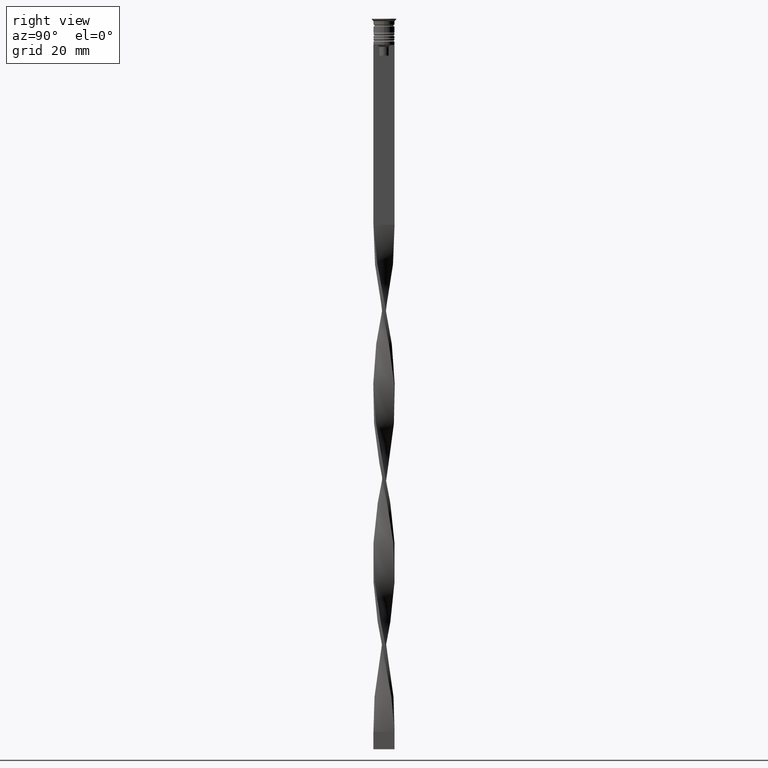
[diagram: clean part render]
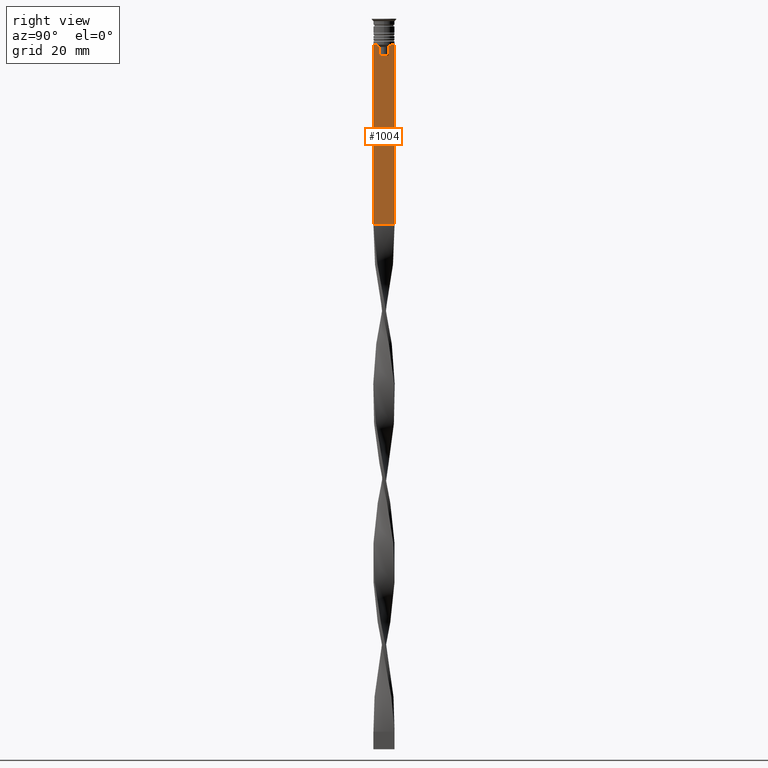
[diagram: same view with one face highlighted and labeled with its STEP entity id]
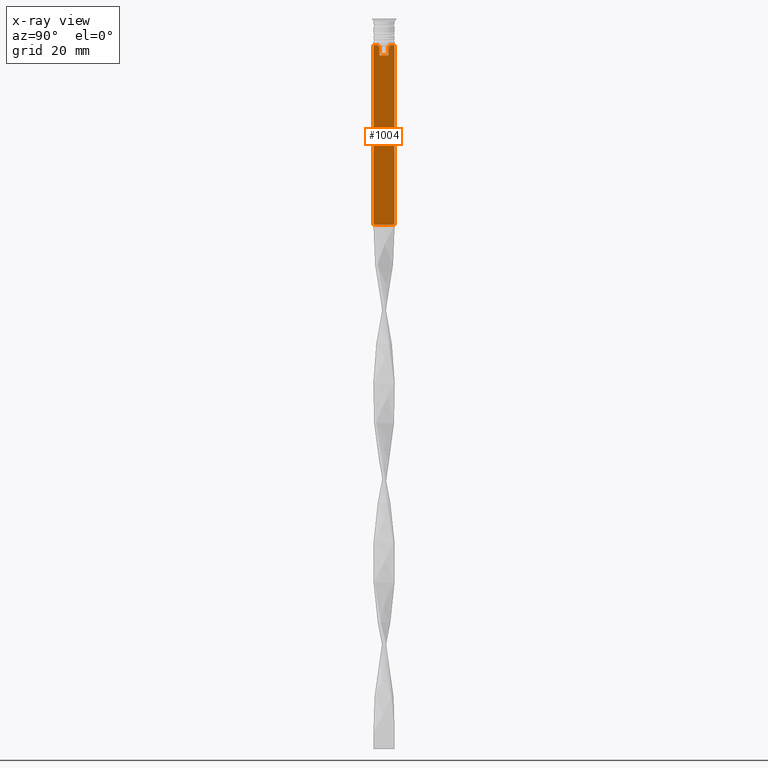
[diagram: x-ray of the same camera — body ghosted, the highlighted face saturated]
A machine part, right view. The second image highlights one B-rep face of the part: STEP entity #1004.
The next image is the same camera in x-ray: the body ghosted, the highlighted face saturated — about 0% of this face is hidden behind the body in this view.
In plain terms, the highlighted planar face has unit normal (-1, 0, 0).
Its self-contained STEP definition (entity closure, byte-faithful):
#69 = CARTESIAN_POINT ( 'NONE',  ( 0.4999999999999998890, 1.307669683062199439, 0.000000000000000000 ) ) ;
#99 = EDGE_CURVE ( 'NONE', #1450, #2519, #1269, .T. ) ;
#123 = ORIENTED_EDGE ( 'NONE', *, *, #2877, .T. ) ;
#127 = VERTEX_POINT ( 'NONE', #997 ) ;
#141 = VERTEX_POINT ( 'NONE', #980 ) ;
#159 = LINE ( 'NONE', #561, #3067 ) ;
#322 = EDGE_CURVE ( 'NONE', #3033, #127, #1973, .T. ) ;
#379 = ORIENTED_EDGE ( 'NONE', *, *, #2598, .T. ) ;
#412 = DIRECTION ( 'NONE',  ( 0.000000000000000000, 0.000000000000000000, -1.000000000000000000 ) ) ;
#413 = DIRECTION ( 'NONE',  ( 0.000000000000000000, 0.000000000000000000, -1.000000000000000000 ) ) ;
#535 = VECTOR ( 'NONE', #1954, 1000.000000000000000 ) ;
#561 = CARTESIAN_POINT ( 'NONE',  ( 0.4999999999999998890, 1.399999999999997691, -10.49999999999999822 ) ) ;
#578 = DIRECTION ( 'NONE',  ( 0.000000000000000000, -1.000000000000000000, 0.000000000000000000 ) ) ;
#592 = CARTESIAN_POINT ( 'NONE',  ( 0.4999999999999998890, -1.659011726860414093, -7.667884880598472286 ) ) ;
#628 = CARTESIAN_POINT ( 'NONE',  ( 0.4999999999999998890, -1.484307477388859153, -7.835011508197190722 ) ) ;
#649 = CARTESIAN_POINT ( 'NONE',  ( 0.4999999999999998890, 1.833030277982335754, -7.500000000000000000 ) ) ;
#738 = CARTESIAN_POINT ( 'NONE',  ( 0.4999999999999998890, -1.307669683062199439, 0.000000000000000000 ) ) ;
#750 = ORIENTED_EDGE ( 'NONE', *, *, #322, .T. ) ;
#755 = CARTESIAN_POINT ( 'NONE',  ( 0.4999999999999998890, -3.000000000000000000, -1.417237469701779329 ) ) ;
#795 = ORIENTED_EDGE ( 'NONE', *, *, #2572, .T. ) ;
#871 = CARTESIAN_POINT ( 'NONE',  ( 0.4999999999999998890, -3.000000000000000000, -7.500000000000000000 ) ) ;
#879 = CARTESIAN_POINT ( 'NONE',  ( 0.4999999999999998890, -1.307669683062199439, -8.000000000000000000 ) ) ;
#907 = CARTESIAN_POINT ( 'NONE',  ( 0.4999999999999998890, 1.307669683062199439, -10.49999999999999822 ) ) ;
#970 = LINE ( 'NONE', #2186, #1472 ) ;
#978 = ORIENTED_EDGE ( 'NONE', *, *, #3331, .T. ) ;
#980 = CARTESIAN_POINT ( 'NONE',  ( 0.4999999999999998890, -1.833030277982335754, -7.500000000000000000 ) ) ;
#986 = LINE ( 'NONE', #1543, #1822 ) ;
#997 = CARTESIAN_POINT ( 'NONE',  ( 0.4999999999999998890, -1.307669683062199439, -8.000000000000000000 ) ) ;
#1004 = ADVANCED_FACE ( 'NONE', ( #1358 ), #3658, .F. ) ;
#1020 = DIRECTION ( 'NONE',  ( -1.000000000000000000, 0.000000000000000000, 0.000000000000000000 ) ) ;
#1049 = VERTEX_POINT ( 'NONE', #2256 ) ;
#1160 = ORIENTED_EDGE ( 'NONE', *, *, #3307, .T. ) ;
#1247 = EDGE_CURVE ( 'NONE', #1450, #2593, #2937, .T. ) ;
#1269 = LINE ( 'NONE', #3018, #1449 ) ;
#1300 = LINE ( 'NONE', #3041, #1714 ) ;
#1329 = VERTEX_POINT ( 'NONE', #2026 ) ;
#1355 = ORIENTED_EDGE ( 'NONE', *, *, #1247, .F. ) ;
#1358 = FACE_OUTER_BOUND ( 'NONE', #2100, .T. ) ;
#1389 = ORIENTED_EDGE ( 'NONE', *, *, #1417, .T. ) ;
#1399 = VECTOR ( 'NONE', #1548, 1000.000000000000000 ) ;
#1417 = EDGE_CURVE ( 'NONE', #1049, #2593, #1565, .T. ) ;
#1449 = VECTOR ( 'NONE', #3580, 1000.000000000000000 ) ;
#1450 = VERTEX_POINT ( 'NONE', #2749 ) ;
#1461 = EDGE_CURVE ( 'NONE', #3715, #3033, #159, .T. ) ;
#1472 = VECTOR ( 'NONE', #3568, 1000.000000000000000 ) ;
#1543 = CARTESIAN_POINT ( 'NONE',  ( 0.4999999999999998890, -3.000000000000000000, -1.417237469701779329 ) ) ;
#1548 = DIRECTION ( 'NONE',  ( 0.000000000000000000, 1.000000000000000000, 0.000000000000000000 ) ) ;
#1565 = LINE ( 'NONE', #3554, #1399 ) ;
#1595 = B_SPLINE_CURVE_WITH_KNOTS ( 'NONE', 3,
 ( #879, #628, #592, #3433 ),
 .UNSPECIFIED., .F., .F.,
 ( 4, 4 ),
 ( 0.007225659348748082224, 0.007950554640278054835 ),
 .UNSPECIFIED. ) ;
#1714 = VECTOR ( 'NONE', #3609, 1000.000000000000000 ) ;
#1822 = VECTOR ( 'NONE', #3548, 1000.000000000000000 ) ;
#1855 = LINE ( 'NONE', #69, #2242 ) ;
#1954 = DIRECTION ( 'NONE',  ( -0.000000000000000000, -0.000000000000000000, 1.000000000000000000 ) ) ;
#1973 = LINE ( 'NONE', #738, #535 ) ;
#2026 = CARTESIAN_POINT ( 'NONE',  ( 0.4999999999999998890, -3.000000000000000000, -7.500000000000000000 ) ) ;
#2061 = ORIENTED_EDGE ( 'NONE', *, *, #3368, .T. ) ;
#2066 = CARTESIAN_POINT ( 'NONE',  ( 0.4999999999999998890, 2.856571371417139904, -7.500000000000000000 ) ) ;
#2100 = EDGE_LOOP ( 'NONE', ( #3189, #795, #123, #2276, #750, #379, #1160, #2061, #978, #1389, #1355, #3330 ) ) ;
#2177 = DIRECTION ( 'NONE',  ( 0.000000000000000000, 0.000000000000000000, 1.000000000000000000 ) ) ;
#2186 = CARTESIAN_POINT ( 'NONE',  ( 0.4999999999999998890, -3.000000000000000000, -7.500000000000000000 ) ) ;
#2242 = VECTOR ( 'NONE', #413, 1000.000000000000000 ) ;
#2256 = CARTESIAN_POINT ( 'NONE',  ( 0.4999999999999998890, -3.000000000000000000, -58.50000000000000000 ) ) ;
#2272 = B_SPLINE_CURVE_WITH_KNOTS ( 'NONE', 3,
 ( #3716, #2329, #2615, #3483 ),
 .UNSPECIFIED., .F., .F.,
 ( 4, 4 ),
 ( 0.003278537493109848298, 0.004003794023484941178 ),
 .UNSPECIFIED. ) ;
#2276 = ORIENTED_EDGE ( 'NONE', *, *, #1461, .T. ) ;
#2290 = AXIS2_PLACEMENT_3D ( 'NONE', #755, #1020, #2177 ) ;
#2291 = VERTEX_POINT ( 'NONE', #649 ) ;
#2329 = CARTESIAN_POINT ( 'NONE',  ( 0.4999999999999998890, 1.659046061654642967, -7.667851756010362507 ) ) ;
#2392 = VERTEX_POINT ( 'NONE', #3097 ) ;
#2453 = VERTEX_POINT ( 'NONE', #3375 ) ;
#2519 = VERTEX_POINT ( 'NONE', #2066 ) ;
#2547 = LINE ( 'NONE', #871, #2777 ) ;
#2572 = EDGE_CURVE ( 'NONE', #2291, #2392, #2272, .T. ) ;
#2593 = VERTEX_POINT ( 'NONE', #3735 ) ;
#2598 = EDGE_CURVE ( 'NONE', #127, #141, #1595, .T. ) ;
#2615 = CARTESIAN_POINT ( 'NONE',  ( 0.4999999999999998890, 1.484355510416485835, -7.834966642958598015 ) ) ;
#2749 = CARTESIAN_POINT ( 'NONE',  ( 0.4999999999999998890, 3.000000000000000000, -7.500000000000000000 ) ) ;
#2773 = VECTOR ( 'NONE', #412, 1000.000000000000000 ) ;
#2777 = VECTOR ( 'NONE', #578, 1000.000000000000000 ) ;
#2877 = EDGE_CURVE ( 'NONE', #2392, #3715, #1855, .T. ) ;
#2937 = LINE ( 'NONE', #3502, #2773 ) ;
#3018 = CARTESIAN_POINT ( 'NONE',  ( 0.4999999999999998890, -3.000000000000000000, -7.500000000000000000 ) ) ;
#3033 = VERTEX_POINT ( 'NONE', #3329 ) ;
#3041 = CARTESIAN_POINT ( 'NONE',  ( 0.4999999999999998890, -3.000000000000000000, -7.500000000000000000 ) ) ;
#3067 = VECTOR ( 'NONE', #3402, 1000.000000000000000 ) ;
#3081 = EDGE_CURVE ( 'NONE', #2519, #2291, #2547, .T. ) ;
#3097 = CARTESIAN_POINT ( 'NONE',  ( 0.4999999999999998890, 1.307669683062199439, -8.000000000000000000 ) ) ;
#3189 = ORIENTED_EDGE ( 'NONE', *, *, #3081, .T. ) ;
#3307 = EDGE_CURVE ( 'NONE', #141, #2453, #1300, .T. ) ;
#3329 = CARTESIAN_POINT ( 'NONE',  ( 0.4999999999999998890, -1.307669683062199439, -10.49999999999999822 ) ) ;
#3330 = ORIENTED_EDGE ( 'NONE', *, *, #99, .T. ) ;
#3331 = EDGE_CURVE ( 'NONE', #1329, #1049, #986, .T. ) ;
#3368 = EDGE_CURVE ( 'NONE', #2453, #1329, #970, .T. ) ;
#3375 = CARTESIAN_POINT ( 'NONE',  ( 0.4999999999999998890, -2.856571371417139904, -7.500000000000000000 ) ) ;
#3402 = DIRECTION ( 'NONE',  ( 0.000000000000000000, -1.000000000000000000, 0.000000000000000000 ) ) ;
#3433 = CARTESIAN_POINT ( 'NONE',  ( 0.4999999999999998890, -1.833030277982335754, -7.500000000000000000 ) ) ;
#3483 = CARTESIAN_POINT ( 'NONE',  ( 0.4999999999999998890, 1.307669683062199439, -8.000000000000000000 ) ) ;
#3502 = CARTESIAN_POINT ( 'NONE',  ( 0.4999999999999998890, 3.000000000000000000, -1.417237469701779329 ) ) ;
#3548 = DIRECTION ( 'NONE',  ( 0.000000000000000000, 0.000000000000000000, -1.000000000000000000 ) ) ;
#3554 = CARTESIAN_POINT ( 'NONE',  ( 0.4999999999999998890, -3.000000000000000000, -58.50000000000000000 ) ) ;
#3568 = DIRECTION ( 'NONE',  ( 0.000000000000000000, -1.000000000000000000, 0.000000000000000000 ) ) ;
#3580 = DIRECTION ( 'NONE',  ( 0.000000000000000000, -1.000000000000000000, 0.000000000000000000 ) ) ;
#3609 = DIRECTION ( 'NONE',  ( 0.000000000000000000, -1.000000000000000000, 0.000000000000000000 ) ) ;
#3658 = PLANE ( 'NONE',  #2290 ) ;
#3715 = VERTEX_POINT ( 'NONE', #907 ) ;
#3716 = CARTESIAN_POINT ( 'NONE',  ( 0.4999999999999998890, 1.833030277982335754, -7.500000000000000000 ) ) ;
#3735 = CARTESIAN_POINT ( 'NONE',  ( 0.4999999999999998890, 3.000000000000000000, -58.50000000000000000 ) ) ;